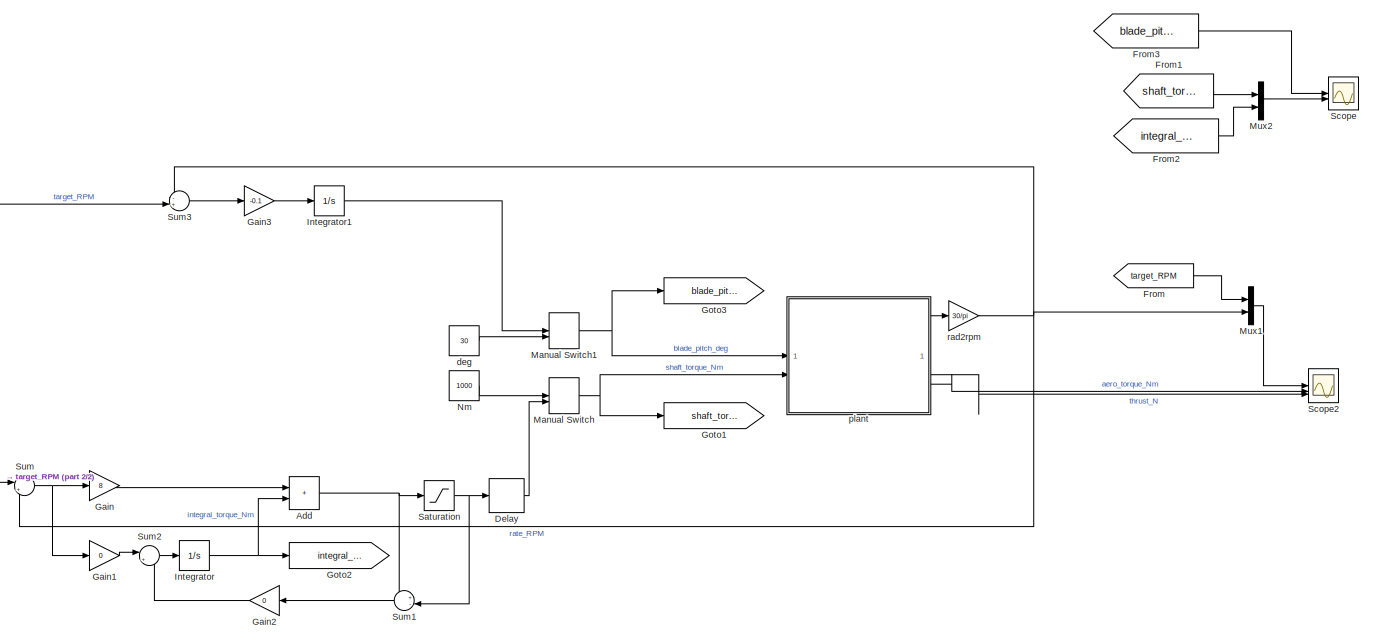
[diagram: root canvas - part 1/2, most of the canvas]
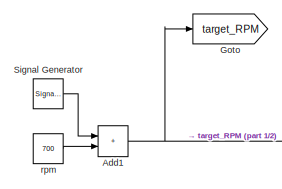
[diagram: root canvas - part 2/2, middle left region]
MODEL slx_c90d5454949d
KIND model
CONFIG AbsTol = auto
CONFIG EnableMultiTasking = off
CONFIG FixedStep = auto
CONFIG MaxStep = auto
CONFIG MinStep = auto
CONFIG RelTol = 1e-3
CONFIG SampleTimeConstraint = Unconstrained
CONFIG SolverName = VariableStepAuto
CONFIG StartTime = 0.0
CONFIG StopTime = 6
BLOCK [Sum] Add
  IconShape = rectangular
BLOCK [Sum] Add1
  IconShape = rectangular
BLOCK [Delay] Delay
  InputPortMap = u0
  SampleTime = 0.01
BLOCK [From] From
  GotoTag = target_RPM
BLOCK [From] From1
  GotoTag = shaft_torque_Nm
BLOCK [From] From2
  GotoTag = integral_torque_Nm
BLOCK [From] From3
  GotoTag = blade_pitch_deg
BLOCK [Gain] Gain
  Gain = 8
BLOCK [Gain] Gain1
  Gain = 0
BLOCK [Gain] Gain2
  Gain = 0
  NameLocation = top
BLOCK [Gain] Gain3
  Gain = -0.1
BLOCK [Goto] Goto
  GotoTag = target_RPM
BLOCK [Goto] Goto1
  GotoTag = shaft_torque_Nm
BLOCK [Goto] Goto2
  GotoTag = integral_torque_Nm
BLOCK [Goto] Goto3
  GotoTag = blade_pitch_deg
BLOCK [Integrator] Integrator
BLOCK [Integrator] Integrator1
  InitialCondition = 30
BLOCK [ManualSwitch] Manual Switch
BLOCK [ManualSwitch] Manual Switch1
  CurrentSetting = 0
BLOCK [Mux] Mux1
  DisplayOption = bar
  Inputs = 2
BLOCK [Mux] Mux2
  DisplayOption = bar
  Inputs = 2
BLOCK [Constant] Nm
  Value = 1000
BLOCK [Saturate] Saturation
  LowerLimit = -1000
  UpperLimit = 2000
BLOCK [Scope] Scope
  Floating = off
  NumInputPorts = 2
  ScopeSpecificationString = Simulink.scopes.TimeScopeBlockCfg('CurrentConfiguration', extmgr.ConfigurationSet(extmgr.Configuration('Core','General UI',true),extmgr.Configuration('Core','Source UI',true),extmgr.Configuration('Sources','WiredSimulink',true),extmgr.Configuration('Visuals','Time Domain',true,'SerializedDisplays',{struct('MinYLimReal','20.00000','MaxYLimReal','40.00000','YLabelReal','','MinYLimMag','20.00000','Ma...<+2008ch>
BLOCK [Scope] Scope2
  Floating = off
  NumInputPorts = 3
  ScopeSpecificationString = Simulink.scopes.TimeScopeBlockCfg('CurrentConfiguration', extmgr.ConfigurationSet(extmgr.Configuration('Core','General UI',true),extmgr.Configuration('Core','Source UI',true),extmgr.Configuration('Sources','WiredSimulink',true,'DataLoggingVariableName','ScopeData2'),extmgr.Configuration('Visuals','Time Domain',true,'SerializedDisplays',{struct('MinYLimReal','-119.3662','MaxYLimReal','1074.29579','...<+2775ch>
BLOCK [SignalGenerator] Signal Generator
  Amplitude = 100
  Frequency = 0.25
  WaveForm = square
BLOCK [Sum] Sum
  Inputs = |+-
BLOCK [Sum] Sum1
  Inputs = +-|
  NameLocation = top
BLOCK [Sum] Sum2
  Inputs = |+-
BLOCK [Sum] Sum3
  Inputs = -+|
BLOCK [Constant] deg
  Value = 30
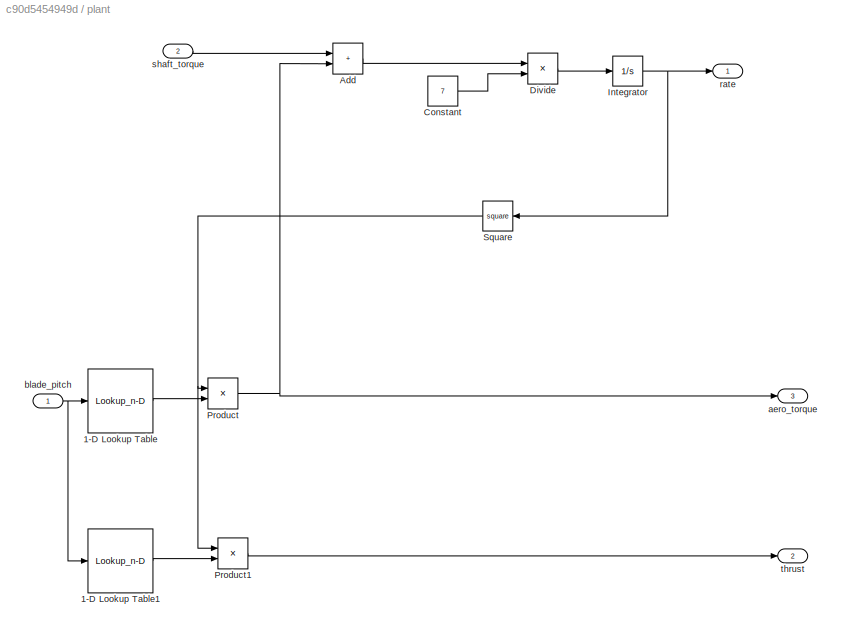
BLOCK [SubSystem] plant
BLOCK [Lookup_n-D] plant/1-D Lookup Table
  BreakpointsForDimension1 = [0 10 20 30 40 50 60]
  InputPortMap = u0
  InternalRulePriority = Speed
  NumberOfTableDimensions = 1
  RndMeth = Simplest
  Table = [-0.1 0.1 0 -0.1 -0.2 -0.4 -0.8]
BLOCK [Lookup_n-D] plant/1-D Lookup Table1
  BreakpointsForDimension1 = [0 10 20 30 40 50 60]
  InputPortMap = u0
  InternalRulePriority = Speed
  NumberOfTableDimensions = 1
  RndMeth = Simplest
  Table = [-1 -0.5 0 0.5 1 0.9 0.8]
BLOCK [Sum] plant/Add
  IconShape = rectangular
BLOCK [Constant] plant/Constant
  Value = 7
BLOCK [Product] plant/Divide
  Inputs = */
BLOCK [Integrator] plant/Integrator
BLOCK [Product] plant/Product
BLOCK [Product] plant/Product1
BLOCK [Math] plant/Square
  NameLocation = top
  Operator = square
BLOCK [Outport] plant/aero_torque
  Port = 3
BLOCK [Inport] plant/blade_pitch
BLOCK [Outport] plant/rate
BLOCK [Inport] plant/shaft_torque
  Port = 2
BLOCK [Outport] plant/thrust
  Port = 2
BLOCK [Gain] rad2rpm
  Gain = 30/pi
BLOCK [Constant] rpm
  Value = 700
NET Add1:1 -> Goto:1, Sum3:2, Sum:1
NET Add:1 -> Saturation:1, Sum1:1
LINE Delay:1 -> Manual Switch:2
LINE From1:1 -> Mux2:1
LINE From2:1 -> Mux2:2
LINE From3:1 -> Scope:1
LINE From:1 -> Mux1:1
LINE Gain1:1 -> Sum2:1
LINE Gain2:1 -> Sum2:2
LINE Gain3:1 -> Integrator1:1
LINE Gain:1 -> Add:1
LINE Integrator1:1 -> Manual Switch1:1
NET Integrator:1 -> Add:2, Goto2:1
NET Manual Switch1:1 -> Goto3:1, plant:1
NET Manual Switch:1 -> Goto1:1, plant:2
LINE Mux1:1 -> Scope2:1
LINE Mux2:1 -> Scope:2
LINE Nm:1 -> Manual Switch:1
NET Saturation:1 -> Delay:1, Sum1:2
LINE Signal Generator:1 -> Add1:1
LINE Sum1:1 -> Gain2:1
LINE Sum2:1 -> Integrator:1
LINE Sum3:1 -> Gain3:1
NET Sum:1 -> Gain1:1, Gain:1
LINE deg:1 -> Manual Switch1:2
LINE plant/1-D Lookup Table1:1 -> plant/Product1:2
LINE plant/1-D Lookup Table:1 -> plant/Product:2
LINE plant/Add:1 -> plant/Divide:1
LINE plant/Constant:1 -> plant/Divide:2
LINE plant/Divide:1 -> plant/Integrator:1
NET plant/Integrator:1 -> plant/Square:1, plant/rate:1
LINE plant/Product1:1 -> plant/thrust:1
NET plant/Product:1 -> plant/Add:2, plant/aero_torque:1
NET plant/Square:1 -> plant/Product1:1, plant/Product:1
NET plant/blade_pitch:1 -> plant/1-D Lookup Table1:1, plant/1-D Lookup Table:1
LINE plant/shaft_torque:1 -> plant/Add:1
LINE plant:1 -> rad2rpm:1
LINE plant:2 -> Scope2:3
LINE plant:3 -> Scope2:2
NET rad2rpm:1 -> Mux1:2, Sum3:1, Sum:2
LINE rpm:1 -> Add1:2
note: NET lines group one-source signal fan-out (src -> all destinations, sorted); 1:1 wires keep LINE
